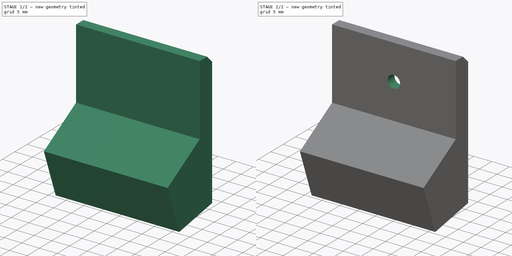
[diagram: build sequence overview — one tinted view per stage of 2, left to right]
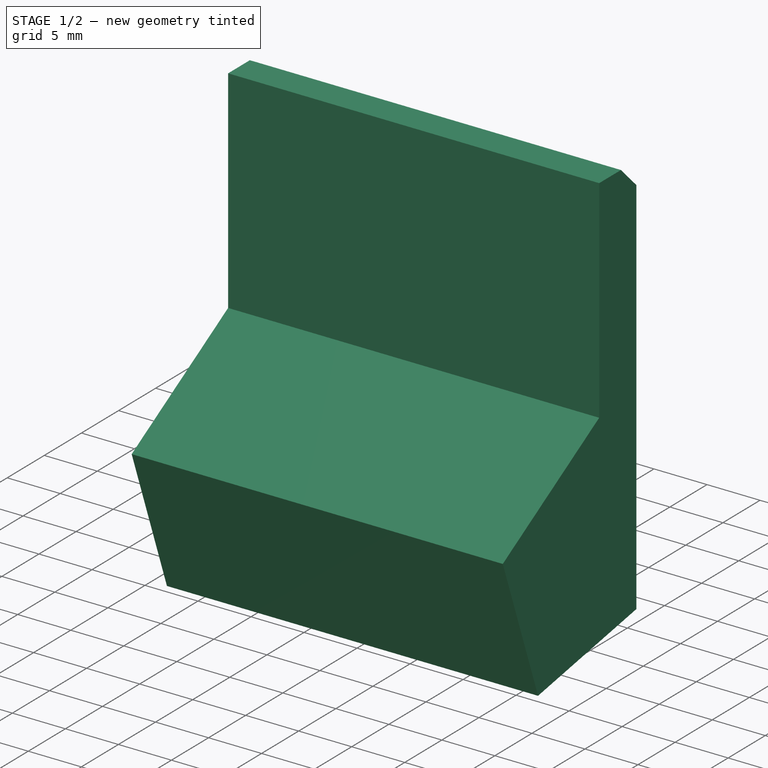
[diagram: stage 1 of 2 — iso view after this stage's code; geometry added in this stage tinted green]
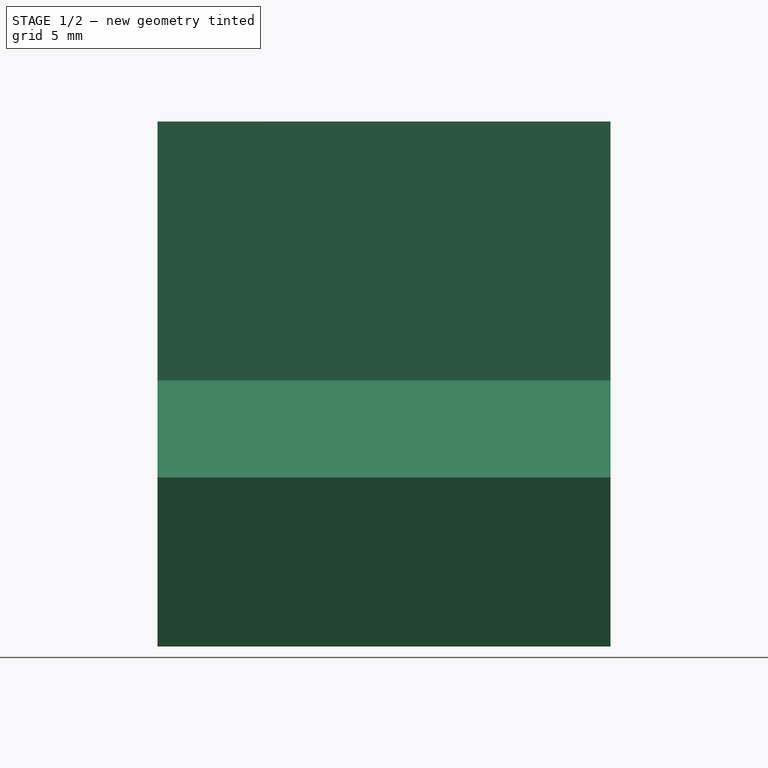
[diagram: stage 1 of 2 — front view after this stage's code; geometry added in this stage tinted green]
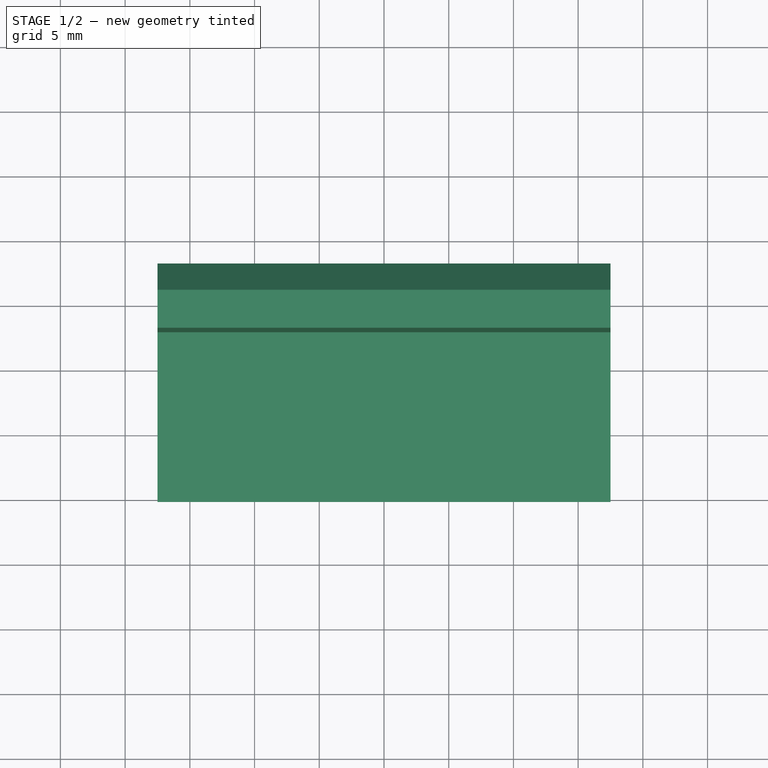
[diagram: stage 1 of 2 — top view after this stage's code; geometry added in this stage tinted green]
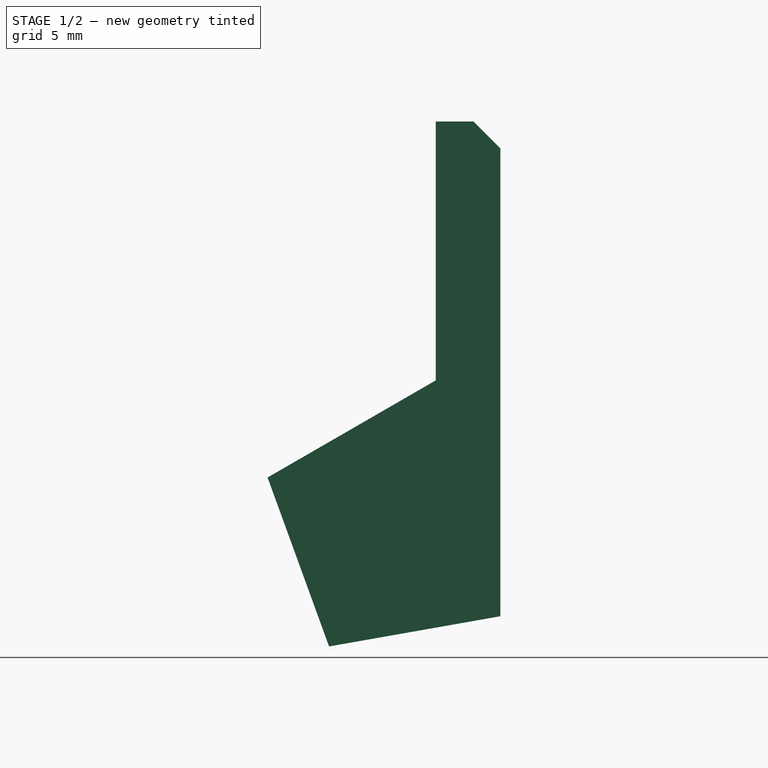
[diagram: stage 1 of 2 — right view after this stage's code; geometry added in this stage tinted green]
FCSTD DOCUMENT  (FreeCAD 0.18.4R)
Label: part14
License: All rights reserved
LicenseURL: http://en.wikipedia.org/wiki/All_rights_reserved
objects: Sketcher::SketchObject×2, PartDesign::Pad×1, PartDesign::Hole×1, PartDesign::Body×1, App::Part×1
note: 7 computed .brp shape members not serialized (recipe doc carries the construction recipe); baked Part::Feature solids carry a one-line shape summary decoded from their .brp

FEATURE [Sketcher::SketchObject] Sketch
  MapMode = 5
  Placement = pos=(0,0,0) rot=(0.57735,0.57735,0.57735;2.0944rad)
  Support = -> [YZ_Plane001]
  sketch-geometry (8):
    g0: LineSegment StartX=34.641 StartY=32 StartZ=0 EndX=47.6314 EndY=39.5 EndZ=0
    g1: LineSegment StartX=39.3923 StartY=18.9459 StartZ=0 EndX=52.6314 EndY=21.2803 EndZ=0
    g2: LineSegment StartX=52.6314 StartY=21.2803 StartZ=0 EndX=52.6314 EndY=57.4289 EndZ=0
    g3: LineSegment StartX=50.5603 StartY=59.5 StartZ=0 EndX=47.6314 EndY=59.5 EndZ=0
    g4: LineSegment StartX=47.6314 StartY=59.5 StartZ=0 EndX=47.6314 EndY=39.5 EndZ=0
    g5: LineSegment StartX=50.5603 StartY=59.5 StartZ=0 EndX=52.6314 EndY=57.4289 EndZ=0
    g6: LineSegment StartX=34.641 StartY=32 StartZ=0 EndX=39.3923 EndY=18.9459 EndZ=0
    g7: GeomPoint X=0 Y=12 Z=0
  constraints (23):
    c: Coincident(g2,g1)
    c: Coincident(g4,g3)
    c: Coincident(g4,g0)
    c: Vertical(g4)
    c: Vertical(g2)
    c: Horizontal(g3)
    c: Distance(g0) = 15
    c: DistanceY(g4,g4) = 20
    c: Coincident(g5,g3)
    c: Coincident(g5,g2)
    c: Angle(g3,g5) = 2.35619
    c: DistanceX(g3,g2) = 5
    c: Equal(g3,g5)
    c: Angle(g-2,g1) = 1.74533
    c: Angle(g0,g-2) = 1.0472
    c: Coincident(g6,g0)
    c: Coincident(g6,g1)
    c: PointOnObject(g7,g-2)
    c: DistanceY(g-1,g7) = 12
    c: Distance(g0,g7) = 40
    c: Distance(g7,g1) = 40
    c: PointOnObject(g7,g1)
    c: PointOnObject(g7,g0)
FEATURE [PartDesign::Pad] Pad
  Length = 35
  Length2 = 100
  Midplane = true
  Placement = pos=(0,0,0) rot=(0.57735,0.57735,0.57735;2.0944rad)
  Profile = -> Sketch
  Type = 0
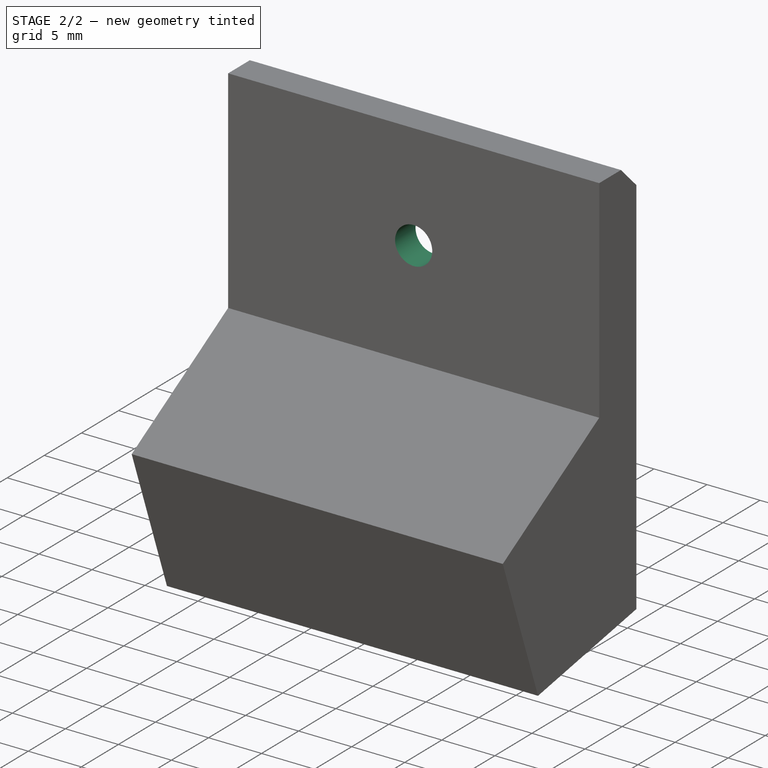
[diagram: stage 2 of 2 — iso view after this stage's code; geometry added in this stage tinted green]
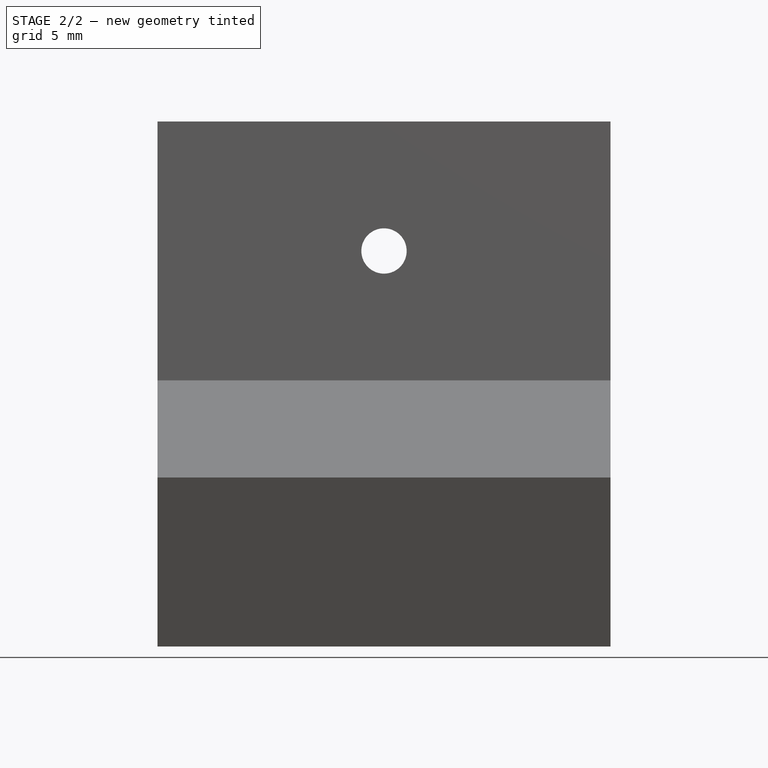
[diagram: stage 2 of 2 — front view after this stage's code; geometry added in this stage tinted green]
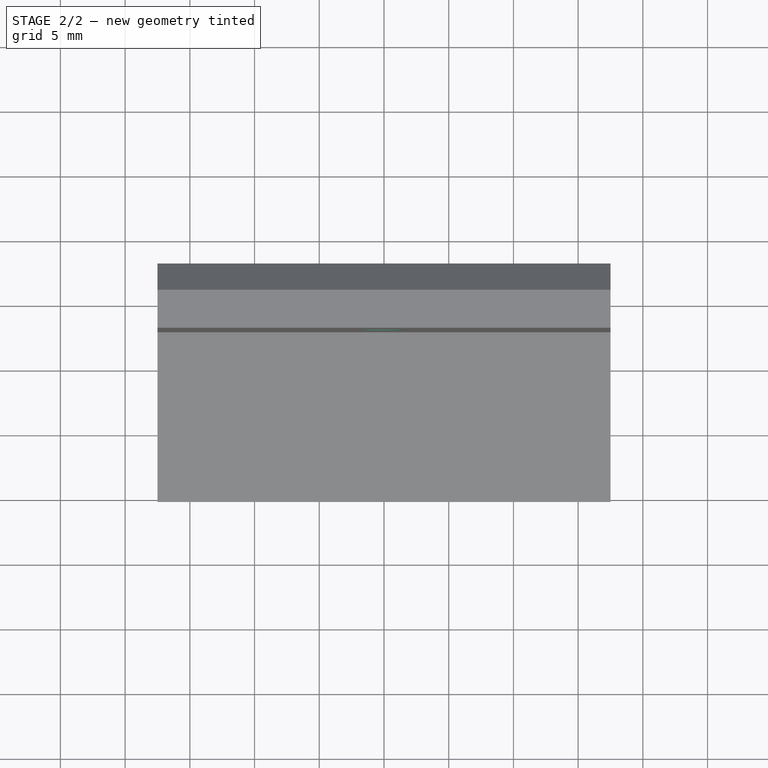
[diagram: stage 2 of 2 — top view after this stage's code; geometry added in this stage tinted green]
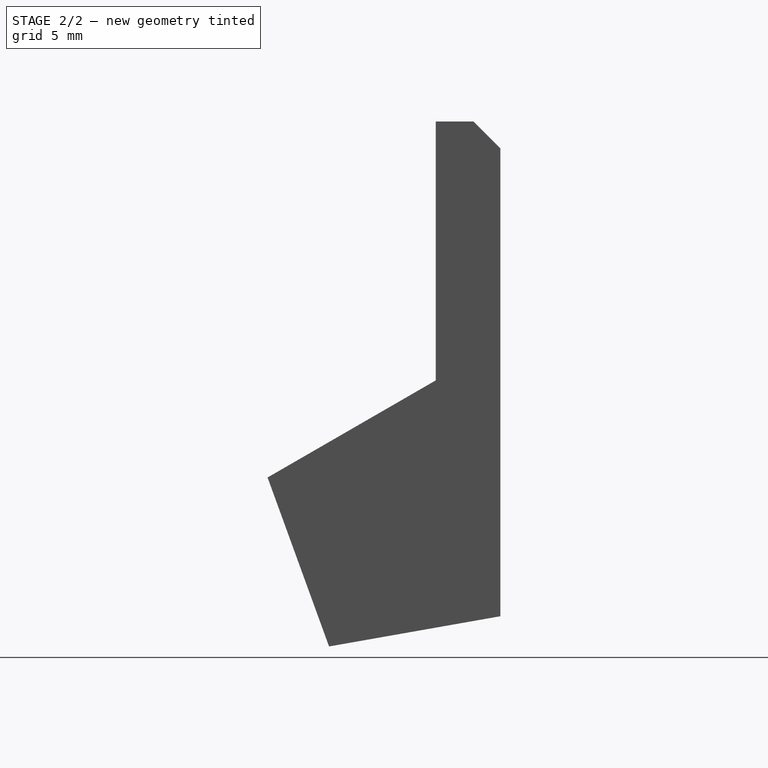
[diagram: stage 2 of 2 — right view after this stage's code; geometry added in this stage tinted green]
FEATURE [Sketcher::SketchObject] Sketch001
  MapMode = 5
  Placement = pos=(2.34e-14,52.6314,-1.75e-14) rot=(0.57735,0.57735,0.57735;4.18879rad)
  Support = -> [Pad]
  sketch-geometry (1):
    g0: Circle CenterX=49.5 CenterY=0 CenterZ=0 NormalX=0 NormalY=0 NormalZ=1 AngleXU=0 Radius=4.45927
  constraints (2):
    c: PointOnObject(g0,g-1)
    c: DistanceX(g-1,g0) = 49.5
FEATURE [PartDesign::Hole] Hole
  BaseFeature = -> Pad
  Depth = 25
  DepthType = 1
  Diameter = 3.5
  DrillPoint = 1
  DrillPointAngle = 118
  HoleCutCountersinkAngle = 90
  HoleCutDepth = 0
  HoleCutDiameter = 8
  HoleCutType = 2
  ModelActualThread = false
  Placement = pos=(0,0,0) rot=(0.57735,0.57735,0.57735;2.0944rad)
  Profile = -> Sketch001
  Tapered = false
  TaperedAngle = 90
  ThreadAngle = 0
  ThreadClass = 0
  ThreadCutOffInner = 0
  ThreadCutOffOuter = 0
  ThreadDirection = 0
  ThreadFit = 0
  ThreadPitch = 0
  ThreadSize = 0
  ThreadType = 0
  Threaded = false
FEATURE [PartDesign::Body] Body
  Group = -> [Sketch,Pad,Sketch001,Hole]
  Origin = -> Origin001
  Tip = -> Hole
FEATURE [App::Part] Part  label="part2"
  Group = -> [Body]
  Origin = -> Origin
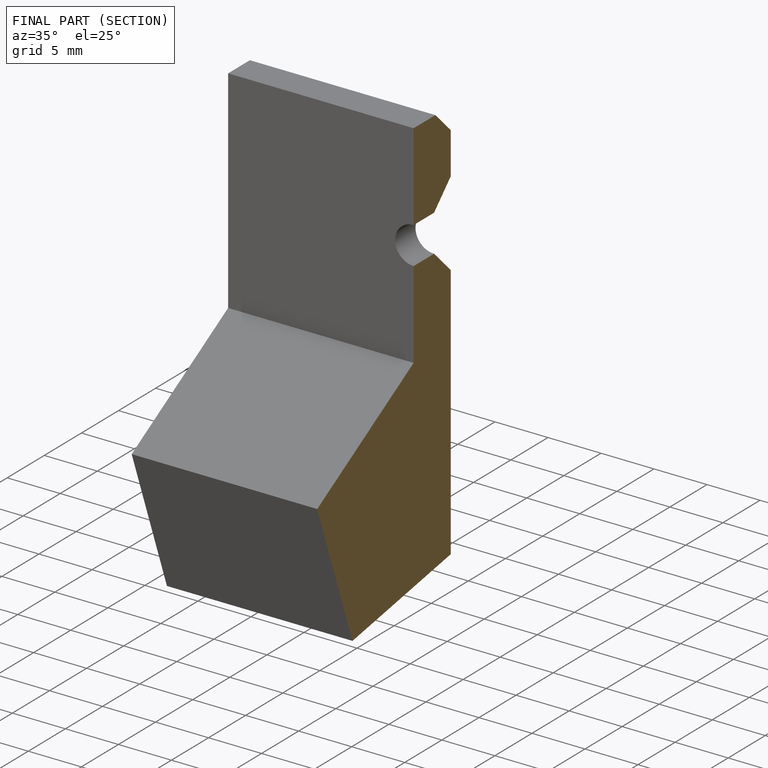
[diagram: finished part — half-section view (interior)]
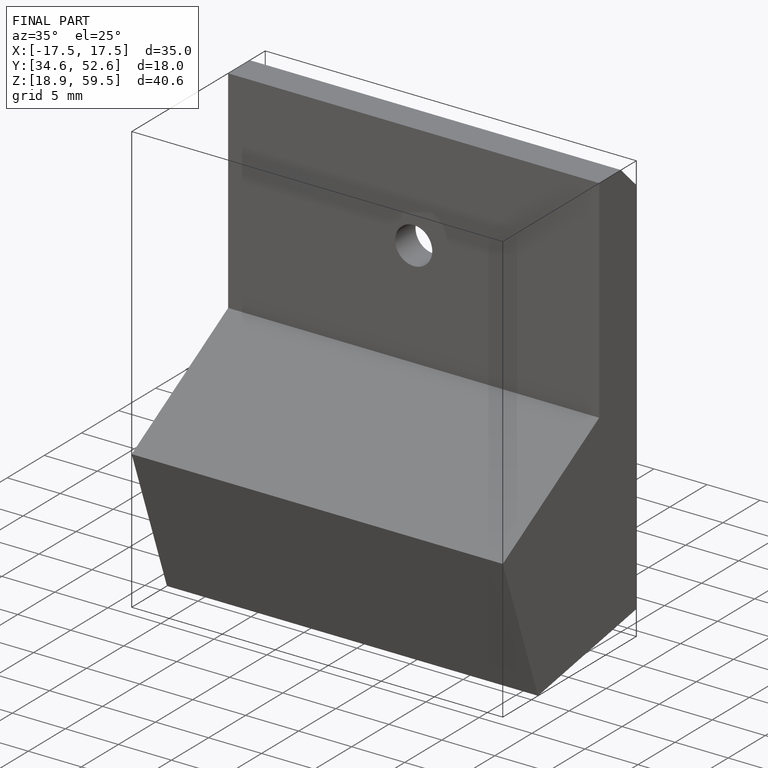
[diagram: finished part — iso view with bounding-box wireframe]
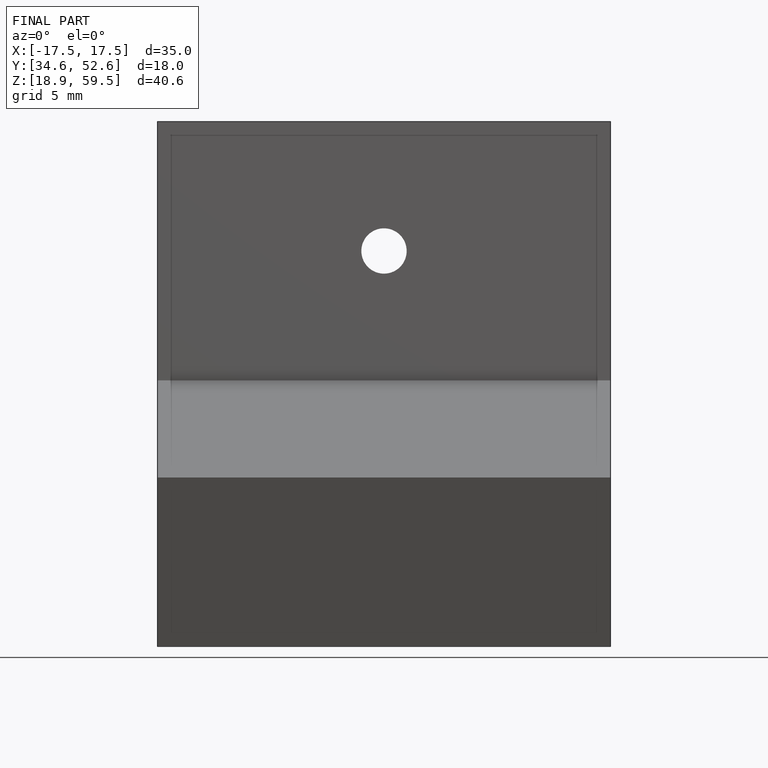
[diagram: finished part — front view with bounding-box wireframe]
